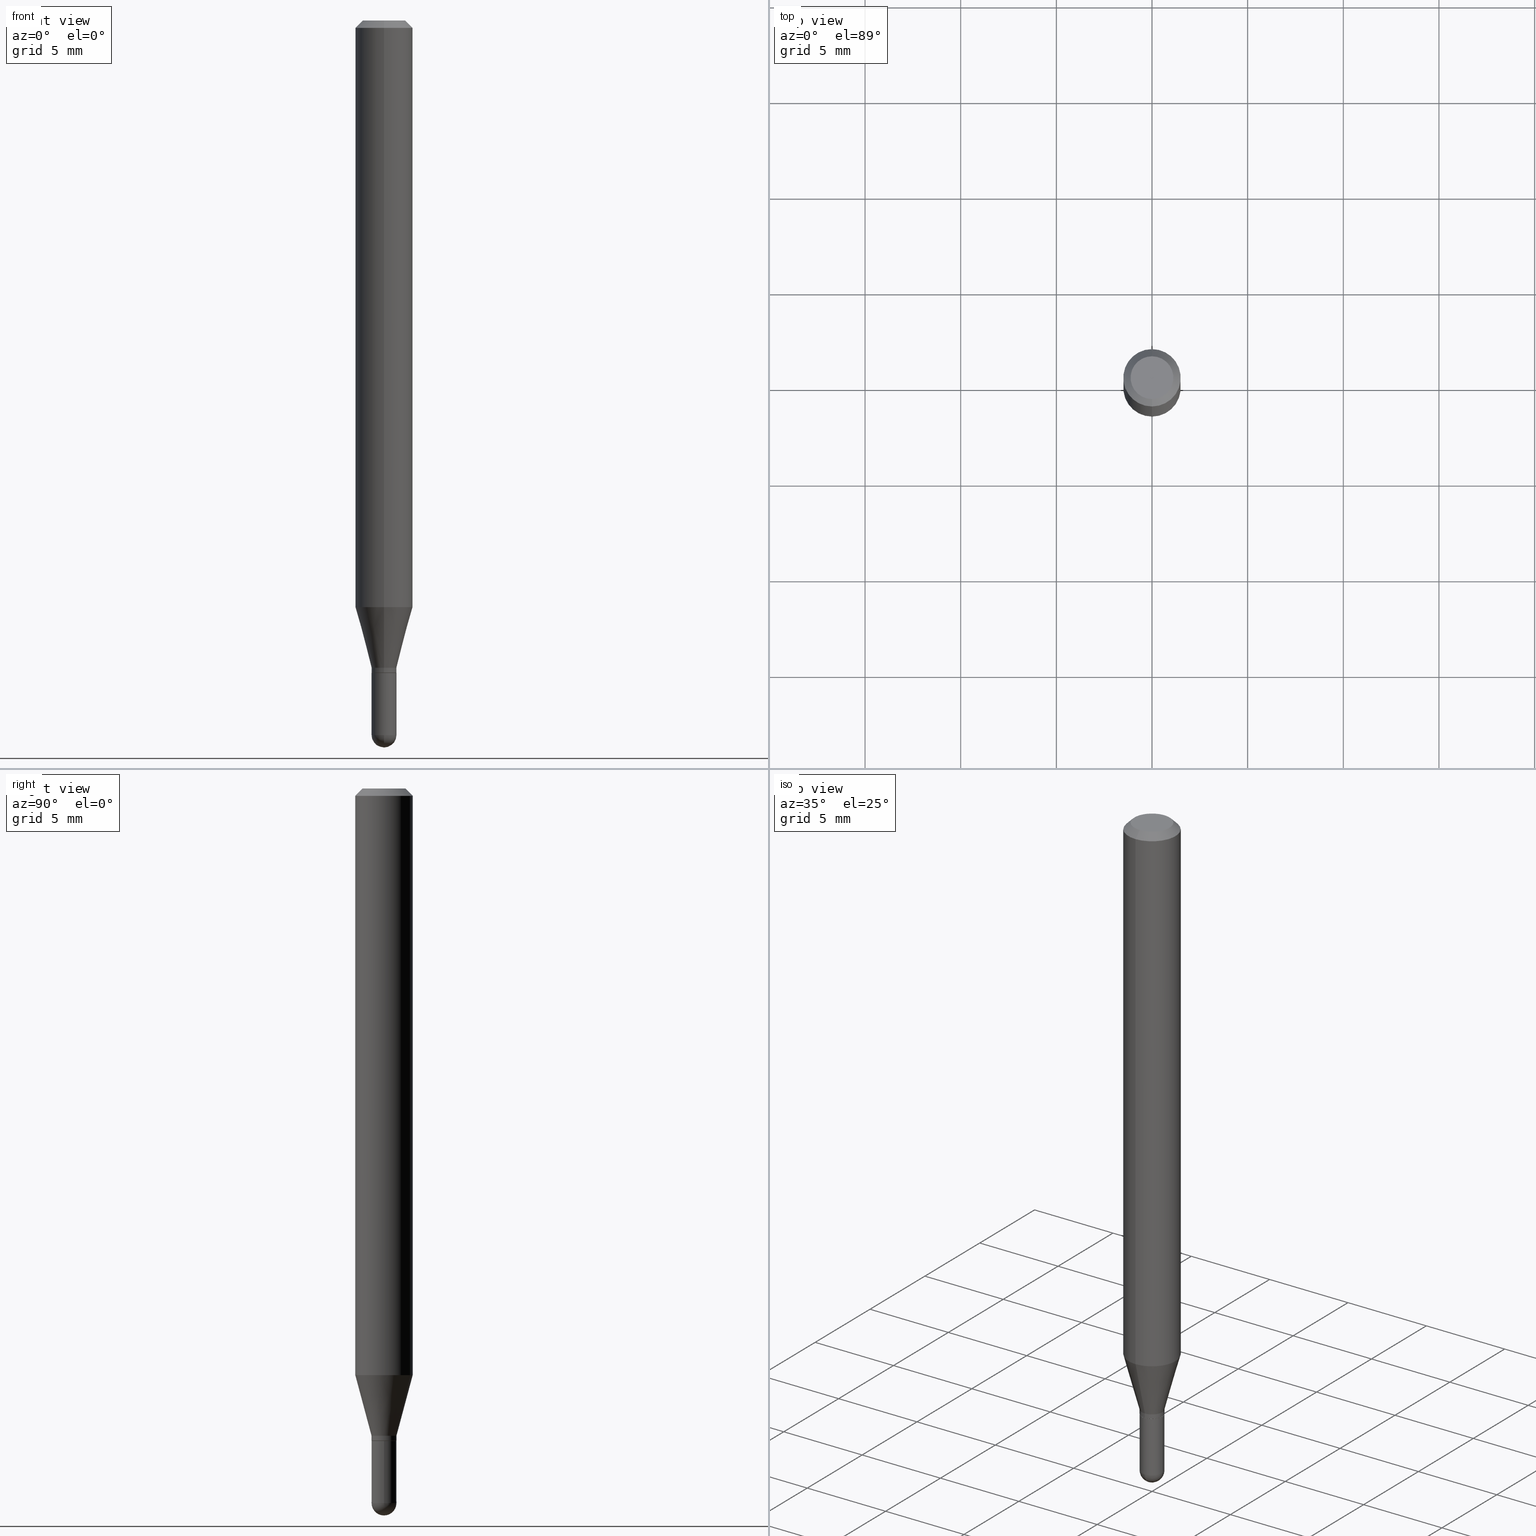
[diagram: canonical four-view strip — front | top / right | iso, engineering-drawing reading convention]
A machine part, canonical four-view strip (front | top / right | iso — engineering-drawing reading convention). The complete STEP part file that produces these views, byte-faithful:
ISO-10303-21;
HEADER;
FILE_DESCRIPTION (( 'STEP AP203' ),
    '1' );
FILE_NAME ('02942.STEP',
    '2024-03-07T21:55:07',
    ( '' ),
    ( '' ),
    'SwSTEP 2.0',
    'SolidWorks 2023',
    '' );
FILE_SCHEMA (( 'CONFIG_CONTROL_DESIGN' ));
ENDSEC;

DATA;
#1 = VERTEX_POINT ( 'NONE', #137 ) ;
#2 = DIRECTION ( 'NONE',  ( 1.000000000000000000, -6.982962677686267499E-15, 4.876176775795935232E-29 ) ) ;
#3 = EDGE_CURVE ( 'NONE', #192, #131, #496, .T. ) ;
#4 = ORIENTED_EDGE ( 'NONE', *, *, #288, .F. ) ;
#5 = CALENDAR_DATE ( 2024, 7, 3 ) ;
#6 = CYLINDRICAL_SURFACE ( 'NONE', #44, 0.02560000000000000817 ) ;
#7 =( CONVERSION_BASED_UNIT ( 'INCH', #234 ) LENGTH_UNIT ( ) NAMED_UNIT ( #369 ) );
#8 = VERTEX_POINT ( 'NONE', #379 ) ;
#9 = SECURITY_CLASSIFICATION_LEVEL ( 'unclassified' ) ;
#10 = DIRECTION ( 'NONE',  ( -6.982962677686266711E-15, -1.000000000000000000, 0.000000000000000000 ) ) ;
#11 = AXIS2_PLACEMENT_3D ( 'NONE', #458, #463, #499 ) ;
#12 = ORIENTED_EDGE ( 'NONE', *, *, #72, .F. ) ;
#13 = LOCAL_TIME ( 16, 55, 7.000000000000000000, #45 ) ;
#14 = DIRECTION ( 'NONE',  ( 1.000000000000000000, -6.982962677686267499E-15, 4.876176775795935232E-29 ) ) ;
#15 = ORIENTED_EDGE ( 'NONE', *, *, #199, .F. ) ;
#16 = DIRECTION ( 'NONE',  ( -2.445504211915057935E-29, 3.491430635822728972E-15, 1.000000000000000000 ) ) ;
#17 = EDGE_CURVE ( 'NONE', #510, #377, #476, .T. ) ;
#18 = EDGE_LOOP ( 'NONE', ( #285, #512, #444, #312 ) ) ;
#19 = MANIFOLD_SOLID_BREP ( 'Body-Move/Copy2[2]', #99 ) ;
#20 = CIRCLE ( 'NONE', #160, 0.02560000000000019899 ) ;
#21 = AXIS2_PLACEMENT_3D ( 'NONE', #37, #184, #459 ) ;
#22 = EDGE_CURVE ( 'NONE', #91, #501, #325, .T. ) ;
#23 = DIRECTION ( 'NONE',  ( -6.982962677686266711E-15, -1.000000000000000000, 0.000000000000000000 ) ) ;
#24 = AXIS2_PLACEMENT_3D ( 'NONE', #388, #143, #390 ) ;
#25 = AXIS2_PLACEMENT_3D ( 'NONE', #222, #384, #340 ) ;
#26 = DIRECTION ( 'NONE',  ( -2.445504211915057935E-29, 3.491430635822728972E-15, 1.000000000000000000 ) ) ;
#27 = EDGE_LOOP ( 'NONE', ( #352, #382, #188, #480, #280 ) ) ;
#28 = EDGE_CURVE ( 'NONE', #167, #406, #79, .T. ) ;
#29 = CC_DESIGN_PERSON_AND_ORGANIZATION_ASSIGNMENT ( #397, #88, ( #215 ) ) ;
#30 = CARTESIAN_POINT ( 'NONE',  ( -1.787638445487334432E-16, -0.02560000000000431028, -1.332100000000000062 ) ) ;
#31 = CARTESIAN_POINT ( 'NONE',  ( 3.596061879495243061E-29, -5.134223308768844733E-15, -1.470499999999999696 ) ) ;
#32 = CIRCLE ( 'NONE', #170, 0.05904999999999999832 ) ;
#33 = DIRECTION ( 'NONE',  ( -2.445504211915057935E-29, 3.491430635822728972E-15, 1.000000000000000000 ) ) ;
#34 = AXIS2_PLACEMENT_3D ( 'NONE', #104, #33, #258 ) ;
#35 = FACE_OUTER_BOUND ( 'NONE', #59, .T. ) ;
#36 = EDGE_CURVE ( 'NONE', #406, #483, #132, .T. ) ;
#37 = CARTESIAN_POINT ( 'NONE',  ( 0.000000000000000000, 0.000000000000000000, 0.000000000000000000 ) ) ;
#38 = DIRECTION ( 'NONE',  ( -2.445504211915057935E-29, 3.491430635822728972E-15, 1.000000000000000000 ) ) ;
#39 = DIRECTION ( 'NONE',  ( -6.982962677686265922E-15, -1.000000000000000000, 3.491430635822729367E-15 ) ) ;
#40 = MECHANICAL_CONTEXT ( 'NONE', #249, 'mechanical' ) ;
#41 = CARTESIAN_POINT ( 'NONE',  ( 1.818989403545850893E-16, 0.02559999999999992490, -8.938062427706160800E-17 ) ) ;
#42 = DIRECTION ( 'NONE',  ( 1.000000000000000000, 0.000000000000000000, 0.000000000000000000 ) ) ;
#43 = ORIENTED_EDGE ( 'NONE', *, *, #28, .F. ) ;
#44 = AXIS2_PLACEMENT_3D ( 'NONE', #89, #196, #2 ) ;
#45 = COORDINATED_UNIVERSAL_TIME_OFFSET ( 5, 0, .BEHIND. ) ;
#46 = AXIS2_PLACEMENT_3D ( 'NONE', #82, #240, #10 ) ;
#47 = ORIENTED_EDGE ( 'NONE', *, *, #85, .F. ) ;
#48 = FACE_OUTER_BOUND ( 'NONE', #27, .T. ) ;
#49 = ORIENTED_EDGE ( 'NONE', *, *, #94, .T. ) ;
#50 = PERSON_AND_ORGANIZATION ( #495, #103 ) ;
#51 = CARTESIAN_POINT ( 'NONE',  ( 3.282111202811199477E-29, -4.685849056337684433E-15, -1.342100000000000071 ) ) ;
#52 = EDGE_LOOP ( 'NONE', ( #419, #49 ) ) ;
#53 = CARTESIAN_POINT ( 'NONE',  ( 3.283333954917155860E-29, -4.687594771655595044E-15, -1.342599999999999794 ) ) ;
#54 = CIRCLE ( 'NONE', #25, 0.02560000000000001164 ) ;
#55 = CC_DESIGN_SECURITY_CLASSIFICATION ( #217, ( #215 ) ) ;
#56 = ORIENTED_EDGE ( 'NONE', *, *, #294, .F. ) ;
#57 = ADVANCED_FACE ( 'NONE', ( #335 ), #446, .T. ) ;
#58 = DIRECTION ( 'NONE',  ( -2.445504211915057935E-29, 3.491430635822728972E-15, 1.000000000000000000 ) ) ;
#59 = EDGE_LOOP ( 'NONE', ( #441, #448, #309, #276 ) ) ;
#60 = EDGE_CURVE ( 'NONE', #8, #1, #109, .T. ) ;
#61 = AXIS2_PLACEMENT_3D ( 'NONE', #417, #502, #347 ) ;
#62 = AXIS2_PLACEMENT_3D ( 'NONE', #166, #398, #474 ) ;
#63 = ORIENTED_EDGE ( 'NONE', *, *, #504, .T. ) ;
#64 = AXIS2_PLACEMENT_3D ( 'NONE', #227, #38, #430 ) ;
#65 = VECTOR ( 'NONE', #503, 39.37007874015748143 ) ;
#66 = APPROVAL ( #278, 'UNSPECIFIED' ) ;
#67 = PRODUCT_RELATED_PRODUCT_CATEGORY ( 'detail', '', ( #257 ) ) ;
#68 = DIRECTION ( 'NONE',  ( -6.982962677686265922E-15, -1.000000000000000000, 0.000000000000000000 ) ) ;
#69 = DIRECTION ( 'NONE',  ( -2.445504211915057935E-29, 3.491430635822728972E-15, 1.000000000000000000 ) ) ;
#70 = DIRECTION ( 'NONE',  ( 1.000000000000000000, -6.982962677686261189E-15, 0.000000000000000000 ) ) ;
#71 = CARTESIAN_POINT ( 'NONE',  ( 2.952366508029308546E-29, -4.215074676251890726E-15, -1.207262900486820278 ) ) ;
#72 = EDGE_CURVE ( 'NONE', #107, #361, #509, .T. ) ;
#73 = APPROVAL_PERSON_ORGANIZATION ( #505, #212, #230 ) ;
#74 = LINE ( 'NONE', #226, #451 ) ;
#75 = FACE_OUTER_BOUND ( 'NONE', #18, .T. ) ;
#76 = DATE_AND_TIME ( #507, #171 ) ;
#77 = CARTESIAN_POINT ( 'NONE',  ( 4.195754854663390985E-16, 0.05904999999999999832, -2.061689790453321353E-16 ) ) ;
#78 = DATE_AND_TIME ( #402, #511 ) ;
#79 = LINE ( 'NONE', #41, #224 ) ;
#80 = DIRECTION ( 'NONE',  ( -2.445504211915058215E-29, 3.491430635822729367E-15, 1.000000000000000000 ) ) ;
#81 = APPROVAL_STATUS ( 'not_yet_approved' ) ;
#82 = CARTESIAN_POINT ( 'NONE',  ( 3.593872653794943736E-29, -5.137358404574661792E-15, -1.470499999999999696 ) ) ;
#83 = ORIENTED_EDGE ( 'NONE', *, *, #60, .T. ) ;
#84 = AXIS2_PLACEMENT_3D ( 'NONE', #403, #359, #157 ) ;
#85 = EDGE_CURVE ( 'NONE', #192, #115, #191, .T. ) ;
#86 = CIRCLE ( 'NONE', #133, 0.02560000000000000470 ) ;
#87 = ORIENTED_EDGE ( 'NONE', *, *, #228, .F. ) ;
#88 = PERSON_AND_ORGANIZATION_ROLE ( 'design_supplier' ) ;
#89 = CARTESIAN_POINT ( 'NONE',  ( 0.000000000000000000, 0.000000000000000000, 0.000000000000000000 ) ) ;
#90 = ORIENTED_EDGE ( 'NONE', *, *, #375, .F. ) ;
#91 = VERTEX_POINT ( 'NONE', #337 ) ;
#92 = PERSON_AND_ORGANIZATION_ROLE ( 'creator' ) ;
#93 = DIRECTION ( 'NONE',  ( -2.445504211915057935E-29, 3.491430635822728972E-15, 1.000000000000000000 ) ) ;
#94 = EDGE_CURVE ( 'NONE', #377, #510, #386, .T. ) ;
#95 = ORIENTED_EDGE ( 'NONE', *, *, #22, .T. ) ;
#96 = AXIS2_PLACEMENT_3D ( 'NONE', #71, #223, #114 ) ;
#97 = CIRCLE ( 'NONE', #138, 0.02560000000000000470 ) ;
#98 = EDGE_CURVE ( 'NONE', #483, #406, #350, .T. ) ;
#99 = CLOSED_SHELL ( 'NONE', ( #453, #101, #450, #383, #159, #134, #356, #57, #333, #392, #367, #269 ) ) ;
#100 = AXIS2_PLACEMENT_3D ( 'NONE', #207, #482, #42 ) ;
#101 = ADVANCED_FACE ( 'NONE', ( #35 ), #462, .T. ) ;
#102 = DIRECTION ( 'NONE',  ( -6.982962677686266711E-15, -1.000000000000000000, 0.000000000000000000 ) ) ;
#103 = ORGANIZATION ( 'UNSPECIFIED', 'UNSPECIFIED', '' ) ;
#104 = CARTESIAN_POINT ( 'NONE',  ( 0.000000000000000000, 0.000000000000000000, 0.000000000000000000 ) ) ;
#105 = DIRECTION ( 'NONE',  ( -2.445468806185136877E-29, 3.491481338843145188E-15, 1.000000000000000000 ) ) ;
#106 = FACE_OUTER_BOUND ( 'NONE', #239, .T. ) ;
#107 = VERTEX_POINT ( 'NONE', #145 ) ;
#108 = DIRECTION ( 'NONE',  ( -6.982962677686266711E-15, -1.000000000000000000, 0.000000000000000000 ) ) ;
#109 = LINE ( 'NONE', #180, #421 ) ;
#110 = VECTOR ( 'NONE', #80, 39.37007874015748143 ) ;
#111 = CYLINDRICAL_SURFACE ( 'NONE', #261, 0.05904999999999999832 ) ;
#112 = CARTESIAN_POINT ( 'NONE',  ( 3.257656160692049411E-29, -4.650934749979458019E-15, -1.332100000000000062 ) ) ;
#113 = PLANE ( 'NONE',  #273 ) ;
#114 = DIRECTION ( 'NONE',  ( -6.982962677686265922E-15, -1.000000000000000000, 4.626330217890369336E-15 ) ) ;
#115 = VERTEX_POINT ( 'NONE', #259 ) ;
#116 = ORIENTED_EDGE ( 'NONE', *, *, #190, .T. ) ;
#117 = DIRECTION ( 'NONE',  ( 1.000000000000000000, -6.982962677686263555E-15, 0.000000000000000000 ) ) ;
#118 = VECTOR ( 'NONE', #344, 39.37007874015748143 ) ;
#119 = DATE_AND_TIME ( #362, #291 ) ;
#120 = DIRECTION ( 'NONE',  ( -2.445504211915057935E-29, 3.491430635822728972E-15, 1.000000000000000000 ) ) ;
#121 = AXIS2_PLACEMENT_3D ( 'NONE', #302, #345, #68 ) ;
#122 = ORIENTED_EDGE ( 'NONE', *, *, #139, .T. ) ;
#123 = PERSON_AND_ORGANIZATION ( #495, #103 ) ;
#124 = CARTESIAN_POINT ( 'NONE',  ( 1.801225835152189062E-16, 0.02509999999999531356, -1.342599999999999794 ) ) ;
#125 = EDGE_CURVE ( 'NONE', #361, #107, #245, .T. ) ;
#126 = ORIENTED_EDGE ( 'NONE', *, *, #282, .T. ) ;
#127 = FACE_OUTER_BOUND ( 'NONE', #445, .T. ) ;
#128 = ORIENTED_EDGE ( 'NONE', *, *, #416, .T. ) ;
#129 = DIRECTION ( 'NONE',  ( -2.445468806185136597E-29, 3.491481338843145583E-15, 1.000000000000000000 ) ) ;
#130 = CONICAL_SURFACE ( 'NONE', #299, 0.02510000000000000078, 0.7853981633980202659 ) ;
#131 = VERTEX_POINT ( 'NONE', #263 ) ;
#132 = CIRCLE ( 'NONE', #216, 0.02559999999999965775 ) ;
#133 = AXIS2_PLACEMENT_3D ( 'NONE', #162, #317, #478 ) ;
#134 = ADVANCED_FACE ( 'NONE', ( #75 ), #338, .T. ) ;
#135 = DIRECTION ( 'NONE',  ( 2.445504211915057654E-29, -3.491430635822729367E-15, -1.000000000000000000 ) ) ;
#136 = DIRECTION ( 'NONE',  ( -4.851104656540964275E-15, -0.7071067811865500152, -0.7071067811865450192 ) ) ;
#137 = CARTESIAN_POINT ( 'NONE',  ( -0.02560000000000000470, -4.729044136795240808E-15, -1.342600000000000016 ) ) ;
#138 = AXIS2_PLACEMENT_3D ( 'NONE', #470, #354, #117 ) ;
#139 = EDGE_CURVE ( 'NONE', #241, #483, #177, .T. ) ;
#140 = CARTESIAN_POINT ( 'NONE',  ( 1.818989403546157563E-16, 0.02559999999999500522, -1.332100000000000062 ) ) ;
#141 = DIRECTION ( 'NONE',  ( 1.000000000000000000, -6.982962677686261189E-15, 0.000000000000000000 ) ) ;
#142 = CARTESIAN_POINT ( 'NONE',  ( -4.051124067684085231E-16, -0.05905000000000005383, -0.01499999999999988495 ) ) ;
#143 = DIRECTION ( 'NONE',  ( -2.445504211915057935E-29, 3.491430635822728972E-15, 1.000000000000000000 ) ) ;
#144 = CARTESIAN_POINT ( 'NONE',  ( -1.787638445487334432E-16, -0.02560000000000431028, -1.332100000000000062 ) ) ;
#145 = CARTESIAN_POINT ( 'NONE',  ( -4.123439461173445490E-16, -0.05905000000000423105, -1.207262900486820056 ) ) ;
#146 = APPROVAL_PERSON_ORGANIZATION ( #50, #283, #473 ) ;
#147 = DIRECTION ( 'NONE',  ( -6.982962677686265922E-15, -1.000000000000000000, 3.491430635822728972E-15 ) ) ;
#148 = APPROVAL_ROLE ( '' ) ;
#149 = DIRECTION ( 'NONE',  ( -2.445504211915057935E-29, 3.491430635822728972E-15, 1.000000000000000000 ) ) ;
#150 = ORIENTED_EDGE ( 'NONE', *, *, #439, .T. ) ;
#151 = PRODUCT_DEFINITION ( 'UNKNOWN', '', #215, #433 ) ;
#152 = CC_DESIGN_DATE_AND_TIME_ASSIGNMENT ( #429, #313, ( #151 ) ) ;
#153 = EDGE_LOOP ( 'NONE', ( #204, #194, #197, #274 ) ) ;
#154 = PERSON_AND_ORGANIZATION ( #495, #103 ) ;
#155 = DIRECTION ( 'NONE',  ( -2.445504211915058215E-29, 3.491430635822729367E-15, 1.000000000000000000 ) ) ;
#156 = PERSON_AND_ORGANIZATION_ROLE ( 'design_owner' ) ;
#157 = DIRECTION ( 'NONE',  ( 1.000000000000000000, -6.982962677686261189E-15, 0.000000000000000000 ) ) ;
#158 = ORIENTED_EDGE ( 'NONE', *, *, #36, .F. ) ;
#159 = ADVANCED_FACE ( 'NONE', ( #506 ), #412, .T. ) ;
#160 = AXIS2_PLACEMENT_3D ( 'NONE', #51, #120, #324 ) ;
#161 = COORDINATED_UNIVERSAL_TIME_OFFSET ( 5, 0, .BEHIND. ) ;
#162 = CARTESIAN_POINT ( 'NONE',  ( 3.283286419184164083E-29, -4.687662845530807554E-15, -1.342600000000000016 ) ) ;
#163 = VECTOR ( 'NONE', #136, 39.37007874015748143 ) ;
#164 = ORIENTED_EDGE ( 'NONE', *, *, #472, .T. ) ;
#165 = EDGE_LOOP ( 'NONE', ( #326, #364, #116, #15 ) ) ;
#166 = CARTESIAN_POINT ( 'NONE',  ( 0.000000000000000000, 0.000000000000000000, 0.000000000000000000 ) ) ;
#167 = VERTEX_POINT ( 'NONE', #168 ) ;
#168 = CARTESIAN_POINT ( 'NONE',  ( 1.818989403546192568E-16, 0.02559999999999542850, -1.342100000000000071 ) ) ;
#169 = ORIENTED_EDGE ( 'NONE', *, *, #3, .T. ) ;
#170 = AXIS2_PLACEMENT_3D ( 'NONE', #198, #93, #279 ) ;
#171 = LOCAL_TIME ( 16, 55, 7.000000000000000000, #346 ) ;
#172 = CC_DESIGN_PERSON_AND_ORGANIZATION_ASSIGNMENT ( #425, #243, ( #217 ) ) ;
#173 = ADVANCED_FACE ( 'NONE', ( #48 ), #6, .T. ) ;
#174 =( GEOMETRIC_REPRESENTATION_CONTEXT ( 3 ) GLOBAL_UNCERTAINTY_ASSIGNED_CONTEXT ( ( #187 ) ) GLOBAL_UNIT_ASSIGNED_CONTEXT ( ( #7, #467, #475 ) ) REPRESENTATION_CONTEXT ( 'NONE', 'WORKASPACE' ) );
#175 = MANIFOLD_SOLID_BREP ( 'Body-Move/Copy2[1]', #214 ) ;
#176 = DIRECTION ( 'NONE',  ( -2.445504211915057935E-29, 3.491430635822728972E-15, 1.000000000000000000 ) ) ;
#177 = LINE ( 'NONE', #186, #118 ) ;
#178 = ADVANCED_FACE ( 'NONE', ( #233 ), #353, .F. ) ;
#179 = LINE ( 'NONE', #140, #65 ) ;
#180 = CARTESIAN_POINT ( 'NONE',  ( -0.02560000000000000817, 1.818989403545857056E-16, -1.259247383105256314E-30 ) ) ;
#181 = AXIS2_PLACEMENT_3D ( 'NONE', #368, #129, #14 ) ;
#182 = CARTESIAN_POINT ( 'NONE',  ( 0.000000000000000000, 0.000000000000000000, 0.000000000000000000 ) ) ;
#183 = DIRECTION ( 'NONE',  ( -2.445468806185136597E-29, 3.491481338843145583E-15, 1.000000000000000000 ) ) ;
#184 = DIRECTION ( 'NONE',  ( -2.445504211915057935E-29, 3.491430635822728972E-15, 1.000000000000000000 ) ) ;
#185 = APPROVAL_DATE_TIME ( #119, #283 ) ;
#186 = CARTESIAN_POINT ( 'NONE',  ( -1.787638445487678819E-16, -0.02559999999999992490, 8.938062427706160800E-17 ) ) ;
#187 = UNCERTAINTY_MEASURE_WITH_UNIT (LENGTH_MEASURE( 1.000000000000000082E-05 ), #7, 'distance_accuracy_value', 'NONE');
#188 = ORIENTED_EDGE ( 'NONE', *, *, #490, .T. ) ;
#189 = CARTESIAN_POINT ( 'NONE',  ( 3.593872653794943736E-29, -5.137358404574661792E-15, -1.470499999999999696 ) ) ;
#190 = EDGE_CURVE ( 'NONE', #107, #91, #443, .T. ) ;
#191 = LINE ( 'NONE', #422, #404 ) ;
#192 = VERTEX_POINT ( 'NONE', #469 ) ;
#193 = AXIS2_PLACEMENT_3D ( 'NONE', #31, #183, #141 ) ;
#194 = ORIENTED_EDGE ( 'NONE', *, *, #28, .T. ) ;
#195 = COORDINATED_UNIVERSAL_TIME_OFFSET ( 5, 0, .BEHIND. ) ;
#196 = DIRECTION ( 'NONE',  ( -2.445468806185136597E-29, 3.491481338843145583E-15, 1.000000000000000000 ) ) ;
#197 = ORIENTED_EDGE ( 'NONE', *, *, #98, .F. ) ;
#198 = CARTESIAN_POINT ( 'NONE',  ( 3.668256317872609375E-31, -5.237145953734125432E-17, -0.01500000000000009139 ) ) ;
#199 = EDGE_CURVE ( 'NONE', #501, #91, #32, .T. ) ;
#200 = EDGE_LOOP ( 'NONE', ( #323, #83, #401, #47, #169 ) ) ;
#201 = DIRECTION ( 'NONE',  ( 1.000000000000000000, -7.105427357601001070E-15, 4.926315508542082329E-29 ) ) ;
#202 = EDGE_LOOP ( 'NONE', ( #43, #128, #122, #158 ) ) ;
#203 = AXIS2_PLACEMENT_3D ( 'NONE', #304, #256, #219 ) ;
#204 = ORIENTED_EDGE ( 'NONE', *, *, #211, .T. ) ;
#205 = CIRCLE ( 'NONE', #455, 0.02510000000000000078 ) ;
#206 = DIRECTION ( 'NONE',  ( -6.982962677686266711E-15, -1.000000000000000000, 0.000000000000000000 ) ) ;
#207 = CARTESIAN_POINT ( 'NONE',  ( 0.000000000000000000, 0.000000000000000000, 0.000000000000000000 ) ) ;
#208 = ORIENTED_EDGE ( 'NONE', *, *, #288, .T. ) ;
#209 = CARTESIAN_POINT ( 'NONE',  ( -1.787638445487375847E-16, -0.02560000000000497294, -1.342100000000000071 ) ) ;
#210 = EDGE_LOOP ( 'NONE', ( #310, #287, #95, #4 ) ) ;
#211 = EDGE_CURVE ( 'NONE', #241, #167, #20, .T. ) ;
#212 = APPROVAL ( #306, 'UNSPECIFIED' ) ;
#213 = PLANE ( 'NONE',  #246 ) ;
#214 = CLOSED_SHELL ( 'NONE', ( #260, #372, #178, #328, #173 ) ) ;
#215 = PRODUCT_DEFINITION_FORMATION_WITH_SPECIFIED_SOURCE ( 'ANY', '', #257, .NOT_KNOWN. ) ;
#216 = AXIS2_PLACEMENT_3D ( 'NONE', #266, #149, #341 ) ;
#217 = SECURITY_CLASSIFICATION ( '', '', #9 ) ;
#218 = FACE_OUTER_BOUND ( 'NONE', #165, .T. ) ;
#219 = DIRECTION ( 'NONE',  ( -6.982962677686265133E-15, -1.000000000000000000, 3.491430635822728578E-15 ) ) ;
#220 = DIRECTION ( 'NONE',  ( 6.982962677686265922E-15, 1.000000000000000000, -3.505890868245046092E-15 ) ) ;
#221 = ORIENTED_EDGE ( 'NONE', *, *, #411, .T. ) ;
#222 = CARTESIAN_POINT ( 'NONE',  ( 3.596061879495243061E-29, -5.134223308768844733E-15, -1.470499999999999696 ) ) ;
#223 = DIRECTION ( 'NONE',  ( -2.445504211915057935E-29, 3.491430635822728972E-15, 1.000000000000000000 ) ) ;
#224 = VECTOR ( 'NONE', #381, 39.37007874015748143 ) ;
#225 = CONICAL_SURFACE ( 'NONE', #327, 0.05904999999999999832, 0.7853981633974483900 ) ;
#226 = CARTESIAN_POINT ( 'NONE',  ( 1.783462266758179639E-16, 0.02509999999999531356, -1.342599999999999794 ) ) ;
#227 = CARTESIAN_POINT ( 'NONE',  ( 3.257656160692049411E-29, -4.650934749979458019E-15, -1.332100000000000062 ) ) ;
#228 = EDGE_CURVE ( 'NONE', #8, #267, #298, .T. ) ;
#229 = DIRECTION ( 'NONE',  ( 1.000000000000000000, -6.982962677686266711E-15, 4.883557194083112901E-29 ) ) ;
#230 = APPROVAL_ROLE ( '' ) ;
#231 = DIRECTION ( 'NONE',  ( -2.445468806185136877E-29, 3.491481338843145188E-15, 1.000000000000000000 ) ) ;
#232 = FACE_OUTER_BOUND ( 'NONE', #210, .T. ) ;
#233 = FACE_OUTER_BOUND ( 'NONE', #366, .T. ) ;
#234 = LENGTH_MEASURE_WITH_UNIT ( LENGTH_MEASURE( 0.02539999999999999897 ), #322 );
#235 = ORIENTED_EDGE ( 'NONE', *, *, #22, .F. ) ;
#236 = PERSON_AND_ORGANIZATION ( #495, #103 ) ;
#237 = LINE ( 'NONE', #275, #414 ) ;
#238 = EDGE_CURVE ( 'NONE', #248, #320, #409, .T. ) ;
#239 = EDGE_LOOP ( 'NONE', ( #468, #221, #235, #436 ) ) ;
#240 = DIRECTION ( 'NONE',  ( -1.000000000000000000, 6.982962677686265922E-15, -4.883557194083112340E-29 ) ) ;
#241 = VERTEX_POINT ( 'NONE', #209 ) ;
#242 = ORIENTED_EDGE ( 'NONE', *, *, #238, .F. ) ;
#243 = PERSON_AND_ORGANIZATION_ROLE ( 'classification_officer' ) ;
#244 = DIRECTION ( 'NONE',  ( -1.000000000000000000, 6.982962677686265922E-15, -4.876176775795935793E-29 ) ) ;
#245 = CIRCLE ( 'NONE', #24, 0.05904999999999999832 ) ;
#246 = AXIS2_PLACEMENT_3D ( 'NONE', #329, #135, #293 ) ;
#247 = CARTESIAN_POINT ( 'NONE',  ( 1.787638445488012852E-16, 0.02559999999999531747, -1.342600000000000016 ) ) ;
#248 = VERTEX_POINT ( 'NONE', #124 ) ;
#249 = APPLICATION_CONTEXT ( 'configuration controlled 3d designs of mechanical parts and assemblies' ) ;
#250 = VECTOR ( 'NONE', #155, 39.37007874015748143 ) ;
#251 = VECTOR ( 'NONE', #387, 39.37007874015748854 ) ;
#252 = PRODUCT_DEFINITION_SHAPE ( 'NONE', 'NONE',  #151 ) ;
#253 = DIRECTION ( 'NONE',  ( 5.024295867790934632E-15, 0.7071067811869542474, 0.7071067811861405650 ) ) ;
#254 = DIRECTION ( 'NONE',  ( -6.982962677686265922E-15, -1.000000000000000000, 0.000000000000000000 ) ) ;
#255 = LINE ( 'NONE', #461, #251 ) ;
#256 = DIRECTION ( 'NONE',  ( -2.445504211915057935E-29, 3.491430635822728972E-15, 1.000000000000000000 ) ) ;
#257 = PRODUCT ( '02942', '02942', '', ( #40 ) ) ;
#258 = DIRECTION ( 'NONE',  ( -6.982962677686265922E-15, -1.000000000000000000, 3.491430635822728972E-15 ) ) ;
#259 = CARTESIAN_POINT ( 'NONE',  ( 0.02560000000000000470, -4.866426690079575830E-15, -1.342600000000000016 ) ) ;
#260 = ADVANCED_FACE ( 'NONE', ( #484 ), #271, .T. ) ;
#261 = AXIS2_PLACEMENT_3D ( 'NONE', #182, #26, #147 ) ;
#262 = APPLICATION_PROTOCOL_DEFINITION ( 'international standard', 'config_control_design', 1994, #485 ) ;
#263 = CARTESIAN_POINT ( 'NONE',  ( 1.818989403546218946E-16, 0.02559999999999490808, -1.470499999999999696 ) ) ;
#264 = DIRECTION ( 'NONE',  ( -2.445504211915057654E-29, 3.491430635822729367E-15, 1.000000000000000000 ) ) ;
#265 = DATE_AND_TIME ( #5, #376 ) ;
#266 = CARTESIAN_POINT ( 'NONE',  ( 3.257656160692049411E-29, -4.650934749979458019E-15, -1.332100000000000062 ) ) ;
#267 = VERTEX_POINT ( 'NONE', #314 ) ;
#268 = ORIENTED_EDGE ( 'NONE', *, *, #465, .F. ) ;
#269 = ADVANCED_FACE ( 'NONE', ( #286 ), #363, .T. ) ;
#270 = CALENDAR_DATE ( 2024, 7, 3 ) ;
#271 = CYLINDRICAL_SURFACE ( 'NONE', #181, 0.02560000000000000817 ) ;
#272 = AXIS2_PLACEMENT_3D ( 'NONE', #308, #69, #385 ) ;
#273 = AXIS2_PLACEMENT_3D ( 'NONE', #454, #264, #39 ) ;
#274 = ORIENTED_EDGE ( 'NONE', *, *, #139, .F. ) ;
#275 = CARTESIAN_POINT ( 'NONE',  ( 4.123439461173743285E-16, 0.05904999999999994975, -0.01500000000000029955 ) ) ;
#276 = ORIENTED_EDGE ( 'NONE', *, *, #439, .F. ) ;
#277 = ORIENTED_EDGE ( 'NONE', *, *, #98, .T. ) ;
#278 = APPROVAL_STATUS ( 'not_yet_approved' ) ;
#279 = DIRECTION ( 'NONE',  ( -6.982962677686265922E-15, -1.000000000000000000, 3.505890868245046092E-15 ) ) ;
#280 = ORIENTED_EDGE ( 'NONE', *, *, #504, .F. ) ;
#281 = DIRECTION ( 'NONE',  ( -6.982962677686265922E-15, -1.000000000000000000, 0.000000000000000000 ) ) ;
#282 = EDGE_CURVE ( 'NONE', #349, #267, #331, .T. ) ;
#283 = APPROVAL ( #81, 'UNSPECIFIED' ) ;
#284 = AXIS2_PLACEMENT_3D ( 'NONE', #112, #494, #254 ) ;
#285 = ORIENTED_EDGE ( 'NONE', *, *, #472, .F. ) ;
#286 = FACE_OUTER_BOUND ( 'NONE', #202, .T. ) ;
#287 = ORIENTED_EDGE ( 'NONE', *, *, #375, .T. ) ;
#288 = EDGE_CURVE ( 'NONE', #510, #501, #237, .T. ) ;
#289 = CARTESIAN_POINT ( 'NONE',  ( 3.283333954917155860E-29, -4.687594771655595044E-15, -1.342599999999999794 ) ) ;
#290 = FACE_OUTER_BOUND ( 'NONE', #52, .T. ) ;
#291 = LOCAL_TIME ( 16, 55, 7.000000000000000000, #195 ) ;
#292 = APPROVAL_DATE_TIME ( #76, #212 ) ;
#293 = DIRECTION ( 'NONE',  ( 6.982962677686265922E-15, 1.000000000000000000, -3.491430635822729367E-15 ) ) ;
#294 = EDGE_CURVE ( 'NONE', #349, #131, #365, .T. ) ;
#295 = CC_DESIGN_PERSON_AND_ORGANIZATION_ASSIGNMENT ( #154, #437, ( #215 ) ) ;
#296 = FACE_OUTER_BOUND ( 'NONE', #399, .T. ) ;
#297 = DIRECTION ( 'NONE',  ( -2.445504211915057935E-29, 3.491430635822728972E-15, 1.000000000000000000 ) ) ;
#298 = CIRCLE ( 'NONE', #84, 0.02560000000000001164 ) ;
#299 = AXIS2_PLACEMENT_3D ( 'NONE', #457, #176, #108 ) ;
#300 = CARTESIAN_POINT ( 'NONE',  ( 3.007372129104922925E-16, 0.02559999999999500522, -1.332100000000000062 ) ) ;
#301 = CARTESIAN_POINT ( 'NONE',  ( 3.668256317872609375E-31, -5.237145953734125432E-17, -0.01500000000000009139 ) ) ;
#302 = CARTESIAN_POINT ( 'NONE',  ( 3.282111202811199477E-29, -4.685849056337684433E-15, -1.342100000000000071 ) ) ;
#303 = EDGE_CURVE ( 'NONE', #115, #1, #86, .T. ) ;
#304 = CARTESIAN_POINT ( 'NONE',  ( 2.241721480264448787E-45, -3.200491340412800534E-31, -9.166704638422894328E-17 ) ) ;
#305 = LINE ( 'NONE', #142, #163 ) ;
#306 = APPROVAL_STATUS ( 'not_yet_approved' ) ;
#307 = DIRECTION ( 'NONE',  ( 2.445504211915057935E-29, -3.491430635822728972E-15, -1.000000000000000000 ) ) ;
#308 = CARTESIAN_POINT ( 'NONE',  ( 2.241721480264448787E-45, -3.200491340412800534E-31, -9.166704638422894328E-17 ) ) ;
#309 = ORIENTED_EDGE ( 'NONE', *, *, #211, .F. ) ;
#310 = ORIENTED_EDGE ( 'NONE', *, *, #94, .F. ) ;
#311 = APPROVAL_DATE_TIME ( #265, #66 ) ;
#312 = ORIENTED_EDGE ( 'NONE', *, *, #125, .F. ) ;
#313 = DATE_TIME_ROLE ( 'creation_date' ) ;
#314 = CARTESIAN_POINT ( 'NONE',  ( -1.787638445487327776E-16, -0.02560000000000517764, -1.470499999999999696 ) ) ;
#315 = CIRCLE ( 'NONE', #121, 0.02560000000000019899 ) ;
#316 = EDGE_LOOP ( 'NONE', ( #440, #449, #150, #371 ) ) ;
#317 = DIRECTION ( 'NONE',  ( -2.445468806185136597E-29, 3.491481338843145583E-15, 1.000000000000000000 ) ) ;
#318 = ADVANCED_BREP_SHAPE_REPRESENTATION ( '02942', ( #175, #19, #100 ), #174 ) ;
#319 = ORIENTED_EDGE ( 'NONE', *, *, #490, .F. ) ;
#320 = VERTEX_POINT ( 'NONE', #321 ) ;
#321 = CARTESIAN_POINT ( 'NONE',  ( -1.752723632098924575E-16, -0.02510000000000468801, -1.342599999999999794 ) ) ;
#322 =( LENGTH_UNIT ( ) NAMED_UNIT ( * ) SI_UNIT ( $, .METRE. ) );
#323 = ORIENTED_EDGE ( 'NONE', *, *, #487, .T. ) ;
#324 = DIRECTION ( 'NONE',  ( -6.982962677686265922E-15, -1.000000000000000000, 0.000000000000000000 ) ) ;
#325 = CIRCLE ( 'NONE', #330, 0.05904999999999999832 ) ;
#326 = ORIENTED_EDGE ( 'NONE', *, *, #411, .F. ) ;
#327 = AXIS2_PLACEMENT_3D ( 'NONE', #508, #307, #220 ) ;
#328 = ADVANCED_FACE ( 'NONE', ( #127 ), #332, .T. ) ;
#329 = CARTESIAN_POINT ( 'NONE',  ( 3.075995059520799729E-16, 0.04404999999999999888, -1.996310427001056731E-16 ) ) ;
#330 = AXIS2_PLACEMENT_3D ( 'NONE', #301, #297, #456 ) ;
#331 = CIRCLE ( 'NONE', #46, 0.02560000000000007062 ) ;
#332 = SPHERICAL_SURFACE ( 'NONE', #423, 0.02560000000000007062 ) ;
#333 = ADVANCED_FACE ( 'NONE', ( #290 ), #213, .F. ) ;
#334 = FACE_OUTER_BOUND ( 'NONE', #316, .T. ) ;
#335 = FACE_OUTER_BOUND ( 'NONE', #471, .T. ) ;
#336 = CARTESIAN_POINT ( 'NONE',  ( 3.596061879495243061E-29, -5.134223308768844733E-15, -1.470499999999999696 ) ) ;
#337 = CARTESIAN_POINT ( 'NONE',  ( -4.123439461173736383E-16, -0.05905000000000005383, -0.01499999999999988495 ) ) ;
#338 = CONICAL_SURFACE ( 'NONE', #64, 0.02559999999999965775, 0.2617993877991502960 ) ;
#339 = EDGE_CURVE ( 'NONE', #320, #248, #205, .T. ) ;
#340 = DIRECTION ( 'NONE',  ( 1.000000000000000000, -6.982962677686261189E-15, 0.000000000000000000 ) ) ;
#341 = DIRECTION ( 'NONE',  ( -6.982962677686265922E-15, -1.000000000000000000, 0.000000000000000000 ) ) ;
#342 = LINE ( 'NONE', #30, #373 ) ;
#343 = DATE_TIME_ROLE ( 'classification_date' ) ;
#344 = DIRECTION ( 'NONE',  ( -2.445504211915058215E-29, 3.491430635822729367E-15, 1.000000000000000000 ) ) ;
#345 = DIRECTION ( 'NONE',  ( -2.445504211915057935E-29, 3.491430635822728972E-15, 1.000000000000000000 ) ) ;
#346 = COORDINATED_UNIVERSAL_TIME_OFFSET ( 5, 0, .BEHIND. ) ;
#347 = DIRECTION ( 'NONE',  ( -6.982962677686266711E-15, -1.000000000000000000, 0.000000000000000000 ) ) ;
#348 = APPLICATION_PROTOCOL_DEFINITION ( 'international standard', 'config_control_design', 1994, #249 ) ;
#349 = VERTEX_POINT ( 'NONE', #413 ) ;
#350 = CIRCLE ( 'NONE', #284, 0.02559999999999965775 ) ;
#351 = CC_DESIGN_APPROVAL ( #212, ( #217 ) ) ;
#352 = ORIENTED_EDGE ( 'NONE', *, *, #60, .F. ) ;
#353 = PLANE ( 'NONE',  #395 ) ;
#354 = DIRECTION ( 'NONE',  ( -2.445468806185136597E-29, 3.491481338843145583E-15, 1.000000000000000000 ) ) ;
#355 = ORIENTED_EDGE ( 'NONE', *, *, #199, .T. ) ;
#356 = ADVANCED_FACE ( 'NONE', ( #218 ), #378, .T. ) ;
#357 = CC_DESIGN_PERSON_AND_ORGANIZATION_ASSIGNMENT ( #442, #92, ( #151 ) ) ;
#358 = COORDINATED_UNIVERSAL_TIME_OFFSET ( 5, 0, .BEHIND. ) ;
#359 = DIRECTION ( 'NONE',  ( -2.445468806185136597E-29, 3.491481338843145583E-15, 1.000000000000000000 ) ) ;
#360 = CARTESIAN_POINT ( 'NONE',  ( 3.599717260347271507E-16, 0.04404999999999999888, -2.454645658922200893E-16 ) ) ;
#361 = VERTEX_POINT ( 'NONE', #420 ) ;
#362 = CALENDAR_DATE ( 2024, 7, 3 ) ;
#363 = CYLINDRICAL_SURFACE ( 'NONE', #62, 0.02559999999999992490 ) ;
#364 = ORIENTED_EDGE ( 'NONE', *, *, #125, .T. ) ;
#365 = CIRCLE ( 'NONE', #464, 0.02560000000000007062 ) ;
#366 = EDGE_LOOP ( 'NONE', ( #489, #63 ) ) ;
#367 = ADVANCED_FACE ( 'NONE', ( #334 ), #130, .T. ) ;
#368 = CARTESIAN_POINT ( 'NONE',  ( 0.000000000000000000, 0.000000000000000000, 0.000000000000000000 ) ) ;
#369 = DIMENSIONAL_EXPONENTS ( 1.000000000000000000, 0.000000000000000000, 0.000000000000000000, 0.000000000000000000, 0.000000000000000000, 0.000000000000000000, 0.000000000000000000 ) ;
#370 = SHAPE_DEFINITION_REPRESENTATION ( #252, #318 ) ;
#371 = ORIENTED_EDGE ( 'NONE', *, *, #416, .F. ) ;
#372 = ADVANCED_FACE ( 'NONE', ( #296 ), #493, .T. ) ;
#373 = VECTOR ( 'NONE', #466, 39.37007874015748143 ) ;
#374 = DIRECTION ( 'NONE',  ( 1.000000000000000000, -6.982962677686266711E-15, 4.883557194083112901E-29 ) ) ;
#375 = EDGE_CURVE ( 'NONE', #377, #91, #305, .T. ) ;
#376 = LOCAL_TIME ( 16, 55, 7.000000000000000000, #358 ) ;
#377 = VERTEX_POINT ( 'NONE', #389 ) ;
#378 = CYLINDRICAL_SURFACE ( 'NONE', #34, 0.05904999999999999832 ) ;
#379 = CARTESIAN_POINT ( 'NONE',  ( -0.02560000000000001164, -4.729044136795240808E-15, -1.470499999999999696 ) ) ;
#380 = FACE_OUTER_BOUND ( 'NONE', #153, .T. ) ;
#381 = DIRECTION ( 'NONE',  ( -2.445504211915058215E-29, 3.491430635822729367E-15, 1.000000000000000000 ) ) ;
#382 = ORIENTED_EDGE ( 'NONE', *, *, #228, .T. ) ;
#383 = ADVANCED_FACE ( 'NONE', ( #106 ), #111, .T. ) ;
#384 = DIRECTION ( 'NONE',  ( -2.445468806185136597E-29, 3.491481338843145583E-15, 1.000000000000000000 ) ) ;
#385 = DIRECTION ( 'NONE',  ( -6.982962677686265133E-15, -1.000000000000000000, 3.491430635822728578E-15 ) ) ;
#386 = CIRCLE ( 'NONE', #272, 0.04404999999999999888 ) ;
#387 = DIRECTION ( 'NONE',  ( -4.937700262167370586E-15, -0.7071067811869493624, 0.7071067811861454500 ) ) ;
#388 = CARTESIAN_POINT ( 'NONE',  ( 2.952366508029308546E-29, -4.215074676251890726E-15, -1.207262900486820278 ) ) ;
#389 = CARTESIAN_POINT ( 'NONE',  ( -3.536586717851222218E-16, -0.04404999999999999888, 6.213047312376223971E-17 ) ) ;
#390 = DIRECTION ( 'NONE',  ( -6.982962677686265922E-15, -1.000000000000000000, 4.626330217890369336E-15 ) ) ;
#391 = EDGE_LOOP ( 'NONE', ( #479, #242 ) ) ;
#392 = ADVANCED_FACE ( 'NONE', ( #424 ), #113, .F. ) ;
#393 = DIRECTION ( 'NONE',  ( 7.105427357601001070E-15, 1.000000000000000000, 0.000000000000000000 ) ) ;
#394 = ORIENTED_EDGE ( 'NONE', *, *, #282, .F. ) ;
#395 = AXIS2_PLACEMENT_3D ( 'NONE', #247, #481, #244 ) ;
#396 = ORIENTED_EDGE ( 'NONE', *, *, #17, .F. ) ;
#397 = PERSON_AND_ORGANIZATION ( #495, #103 ) ;
#398 = DIRECTION ( 'NONE',  ( -2.445504211915057935E-29, 3.491430635822728972E-15, 1.000000000000000000 ) ) ;
#399 = EDGE_LOOP ( 'NONE', ( #394, #477, #431, #319 ) ) ;
#400 = EDGE_CURVE ( 'NONE', #248, #167, #74, .T. ) ;
#401 = ORIENTED_EDGE ( 'NONE', *, *, #303, .F. ) ;
#402 = CALENDAR_DATE ( 2024, 7, 3 ) ;
#403 = CARTESIAN_POINT ( 'NONE',  ( 3.596061879495243061E-29, -5.134223308768844733E-15, -1.470499999999999696 ) ) ;
#404 = VECTOR ( 'NONE', #105, 39.37007874015748143 ) ;
#405 = AXIS2_PLACEMENT_3D ( 'NONE', #336, #418, #70 ) ;
#406 = VERTEX_POINT ( 'NONE', #300 ) ;
#407 = CARTESIAN_POINT ( 'NONE',  ( -4.123439461173739834E-16, -0.05904999999999999832, 2.061689790453321353E-16 ) ) ;
#408 = EDGE_LOOP ( 'NONE', ( #277, #164, #12, #268 ) ) ;
#409 = CIRCLE ( 'NONE', #434, 0.02510000000000000078 ) ;
#410 = CIRCLE ( 'NONE', #405, 0.02560000000000001164 ) ;
#411 = EDGE_CURVE ( 'NONE', #361, #501, #428, .T. ) ;
#412 = CONICAL_SURFACE ( 'NONE', #486, 0.02559999999999965775, 0.2617993877991502960 ) ;
#413 = CARTESIAN_POINT ( 'NONE',  ( 3.655382042383133963E-29, -5.228307874751955644E-15, -1.496099999999999985 ) ) ;
#414 = VECTOR ( 'NONE', #438, 39.37007874015748143 ) ;
#415 = DIRECTION ( 'NONE',  ( -6.982962677686266711E-15, -1.000000000000000000, 0.000000000000000000 ) ) ;
#416 = EDGE_CURVE ( 'NONE', #167, #241, #315, .T. ) ;
#417 = CARTESIAN_POINT ( 'NONE',  ( 3.283333954917155860E-29, -4.687594771655595044E-15, -1.342599999999999794 ) ) ;
#418 = DIRECTION ( 'NONE',  ( -2.445468806185136597E-29, 3.491481338843145583E-15, 1.000000000000000000 ) ) ;
#419 = ORIENTED_EDGE ( 'NONE', *, *, #17, .T. ) ;
#420 = CARTESIAN_POINT ( 'NONE',  ( 4.195754854663684343E-16, 0.05904999999999574478, -1.207262900486820278 ) ) ;
#421 = VECTOR ( 'NONE', #231, 39.37007874015748143 ) ;
#422 = CARTESIAN_POINT ( 'NONE',  ( 0.02560000000000000817, -1.787638445487684982E-16, 1.248301254603759867E-30 ) ) ;
#423 = AXIS2_PLACEMENT_3D ( 'NONE', #492, #374, #23 ) ;
#424 = FACE_OUTER_BOUND ( 'NONE', #391, .T. ) ;
#425 = PERSON_AND_ORGANIZATION ( #495, #103 ) ;
#426 = CARTESIAN_POINT ( 'NONE',  ( 3.257656160692049411E-29, -4.650934749979458019E-15, -1.332100000000000062 ) ) ;
#427 = CC_DESIGN_PERSON_AND_ORGANIZATION_ASSIGNMENT ( #236, #156, ( #257 ) ) ;
#428 = LINE ( 'NONE', #77, #110 ) ;
#429 = DATE_AND_TIME ( #270, #13 ) ;
#430 = DIRECTION ( 'NONE',  ( -6.982962677686265922E-15, -1.000000000000000000, 0.000000000000000000 ) ) ;
#431 = ORIENTED_EDGE ( 'NONE', *, *, #3, .F. ) ;
#432 = CARTESIAN_POINT ( 'NONE',  ( 3.593872653794943736E-29, -5.137358404574661792E-15, -1.470499999999999696 ) ) ;
#433 = DESIGN_CONTEXT ( 'detailed design', #485, 'design' ) ;
#434 = AXIS2_PLACEMENT_3D ( 'NONE', #53, #58, #206 ) ;
#435 = APPROVAL_PERSON_ORGANIZATION ( #123, #66, #148 ) ;
#436 = ORIENTED_EDGE ( 'NONE', *, *, #190, .F. ) ;
#437 = PERSON_AND_ORGANIZATION_ROLE ( 'creator' ) ;
#438 = DIRECTION ( 'NONE',  ( 4.937700262164548042E-15, 0.7071067811865451302, -0.7071067811865499042 ) ) ;
#439 = EDGE_CURVE ( 'NONE', #320, #241, #255, .T. ) ;
#440 = ORIENTED_EDGE ( 'NONE', *, *, #400, .F. ) ;
#441 = ORIENTED_EDGE ( 'NONE', *, *, #339, .T. ) ;
#442 = PERSON_AND_ORGANIZATION ( #495, #103 ) ;
#443 = LINE ( 'NONE', #407, #250 ) ;
#444 = ORIENTED_EDGE ( 'NONE', *, *, #465, .T. ) ;
#445 = EDGE_LOOP ( 'NONE', ( #56, #126, #87, #460 ) ) ;
#446 = CONICAL_SURFACE ( 'NONE', #11, 0.05904999999999999832, 0.7853981633974483900 ) ;
#447 = CC_DESIGN_APPROVAL ( #283, ( #215 ) ) ;
#448 = ORIENTED_EDGE ( 'NONE', *, *, #400, .T. ) ;
#449 = ORIENTED_EDGE ( 'NONE', *, *, #238, .T. ) ;
#450 = ADVANCED_FACE ( 'NONE', ( #232 ), #225, .T. ) ;
#451 = VECTOR ( 'NONE', #253, 39.37007874015748854 ) ;
#452 = DIRECTION ( 'NONE',  ( -2.445504211915057935E-29, 3.491430635822728972E-15, 1.000000000000000000 ) ) ;
#453 = ADVANCED_FACE ( 'NONE', ( #380 ), #497, .T. ) ;
#454 = CARTESIAN_POINT ( 'NONE',  ( 3.283333954917156420E-29, -4.687594771655596622E-15, -1.342600000000000016 ) ) ;
#455 = AXIS2_PLACEMENT_3D ( 'NONE', #289, #452, #102 ) ;
#456 = DIRECTION ( 'NONE',  ( -6.982962677686265922E-15, -1.000000000000000000, 3.505890868245046092E-15 ) ) ;
#457 = CARTESIAN_POINT ( 'NONE',  ( 3.283333954917155860E-29, -4.687594771655595044E-15, -1.342599999999999794 ) ) ;
#458 = CARTESIAN_POINT ( 'NONE',  ( 3.668256317872609375E-31, -5.237145953734125432E-17, -0.01500000000000009139 ) ) ;
#459 = DIRECTION ( 'NONE',  ( -6.982962677686265922E-15, -1.000000000000000000, 3.491430635822729367E-15 ) ) ;
#460 = ORIENTED_EDGE ( 'NONE', *, *, #487, .F. ) ;
#461 = CARTESIAN_POINT ( 'NONE',  ( -1.752723632098924575E-16, -0.02510000000000468801, -1.342599999999999794 ) ) ;
#462 = CONICAL_SURFACE ( 'NONE', #61, 0.02510000000000000078, 0.7853981633980202659 ) ;
#463 = DIRECTION ( 'NONE',  ( 2.445504211915057935E-29, -3.491430635822728972E-15, -1.000000000000000000 ) ) ;
#464 = AXIS2_PLACEMENT_3D ( 'NONE', #432, #201, #393 ) ;
#465 = EDGE_CURVE ( 'NONE', #483, #107, #342, .T. ) ;
#466 = DIRECTION ( 'NONE',  ( -1.807323732225330139E-15, -0.2588190451025181860, 0.9659258262890689783 ) ) ;
#467 =( NAMED_UNIT ( * ) PLANE_ANGLE_UNIT ( ) SI_UNIT ( $, .RADIAN. ) );
#468 = ORIENTED_EDGE ( 'NONE', *, *, #72, .T. ) ;
#469 = CARTESIAN_POINT ( 'NONE',  ( 0.02560000000000001164, -5.089706921698594420E-15, -1.470499999999999696 ) ) ;
#470 = CARTESIAN_POINT ( 'NONE',  ( 3.283286419184164083E-29, -4.687662845530807554E-15, -1.342600000000000016 ) ) ;
#471 = EDGE_LOOP ( 'NONE', ( #90, #396, #208, #355 ) ) ;
#472 = EDGE_CURVE ( 'NONE', #406, #361, #179, .T. ) ;
#473 = APPROVAL_ROLE ( '' ) ;
#474 = DIRECTION ( 'NONE',  ( -6.982962677686265922E-15, -1.000000000000000000, 3.491430635822729367E-15 ) ) ;
#475 =( NAMED_UNIT ( * ) SI_UNIT ( $, .STERADIAN. ) SOLID_ANGLE_UNIT ( ) );
#476 = CIRCLE ( 'NONE', #203, 0.04404999999999999888 ) ;
#477 = ORIENTED_EDGE ( 'NONE', *, *, #294, .T. ) ;
#478 = DIRECTION ( 'NONE',  ( 1.000000000000000000, -6.982962677686263555E-15, 0.000000000000000000 ) ) ;
#479 = ORIENTED_EDGE ( 'NONE', *, *, #339, .F. ) ;
#480 = ORIENTED_EDGE ( 'NONE', *, *, #85, .T. ) ;
#481 = DIRECTION ( 'NONE',  ( 2.438088387897960049E-29, -3.491481338843145188E-15, -1.000000000000000000 ) ) ;
#482 = DIRECTION ( 'NONE',  ( 0.000000000000000000, 0.000000000000000000, 1.000000000000000000 ) ) ;
#483 = VERTEX_POINT ( 'NONE', #144 ) ;
#484 = FACE_OUTER_BOUND ( 'NONE', #200, .T. ) ;
#485 = APPLICATION_CONTEXT ( 'configuration controlled 3d designs of mechanical parts and assemblies' ) ;
#486 = AXIS2_PLACEMENT_3D ( 'NONE', #426, #16, #281 ) ;
#487 = EDGE_CURVE ( 'NONE', #131, #8, #410, .T. ) ;
#488 = CC_DESIGN_DATE_AND_TIME_ASSIGNMENT ( #78, #343, ( #217 ) ) ;
#489 = ORIENTED_EDGE ( 'NONE', *, *, #303, .T. ) ;
#490 = EDGE_CURVE ( 'NONE', #267, #192, #54, .T. ) ;
#491 = AXIS2_PLACEMENT_3D ( 'NONE', #189, #229, #415 ) ;
#492 = CARTESIAN_POINT ( 'NONE',  ( 3.593872653794943736E-29, -5.137358404574661792E-15, -1.470499999999999696 ) ) ;
#493 = SPHERICAL_SURFACE ( 'NONE', #491, 0.02560000000000007062 ) ;
#494 = DIRECTION ( 'NONE',  ( -2.445504211915057935E-29, 3.491430635822728972E-15, 1.000000000000000000 ) ) ;
#495 = PERSON ( 'UNSPECIFIED', 'UNSPECIFIED', 'UNSPECIFIED', ('UNSPECIFIED'), ('UNSPECIFIED'), ('UNSPECIFIED') ) ;
#496 = CIRCLE ( 'NONE', #193, 0.02560000000000001164 ) ;
#497 = CYLINDRICAL_SURFACE ( 'NONE', #21, 0.02559999999999992490 ) ;
#498 = CC_DESIGN_APPROVAL ( #66, ( #151 ) ) ;
#499 = DIRECTION ( 'NONE',  ( 6.982962677686265922E-15, 1.000000000000000000, -3.505890868245046092E-15 ) ) ;
#500 = CARTESIAN_POINT ( 'NONE',  ( 4.195754854663688780E-16, 0.05904999999999994975, -0.01500000000000029955 ) ) ;
#501 = VERTEX_POINT ( 'NONE', #500 ) ;
#502 = DIRECTION ( 'NONE',  ( -2.445504211915057935E-29, 3.491430635822728972E-15, 1.000000000000000000 ) ) ;
#503 = DIRECTION ( 'NONE',  ( 1.839019923739600315E-15, 0.2588190451025249583, 0.9659258262890670910 ) ) ;
#504 = EDGE_CURVE ( 'NONE', #1, #115, #97, .T. ) ;
#505 = PERSON_AND_ORGANIZATION ( #495, #103 ) ;
#506 = FACE_OUTER_BOUND ( 'NONE', #408, .T. ) ;
#507 = CALENDAR_DATE ( 2024, 7, 3 ) ;
#508 = CARTESIAN_POINT ( 'NONE',  ( 3.668256317872609375E-31, -5.237145953734125432E-17, -0.01500000000000009139 ) ) ;
#509 = CIRCLE ( 'NONE', #96, 0.05904999999999999832 ) ;
#510 = VERTEX_POINT ( 'NONE', #360 ) ;
#511 = LOCAL_TIME ( 16, 55, 7.000000000000000000, #161 ) ;
#512 = ORIENTED_EDGE ( 'NONE', *, *, #36, .T. ) ;
ENDSEC;
END-ISO-10303-21;
